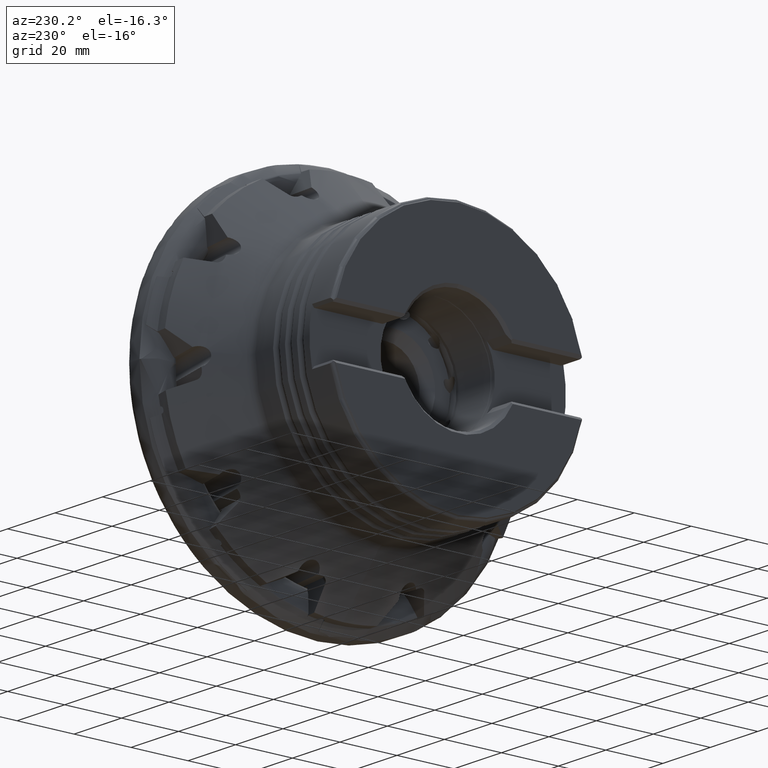
[diagram: clean part render]
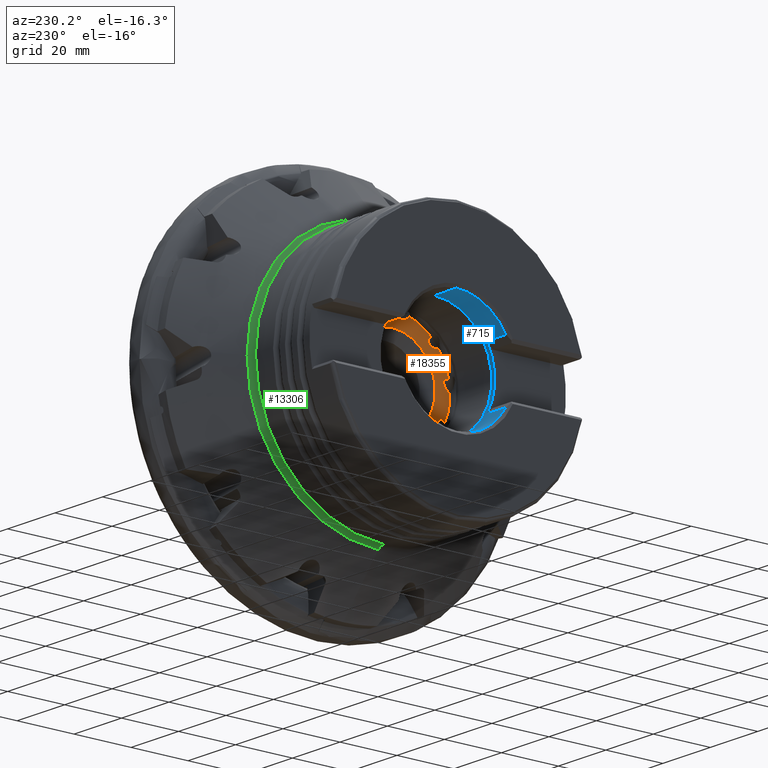
[diagram: same view with three faces highlighted in distinct colors, each labeled with its STEP entity id]
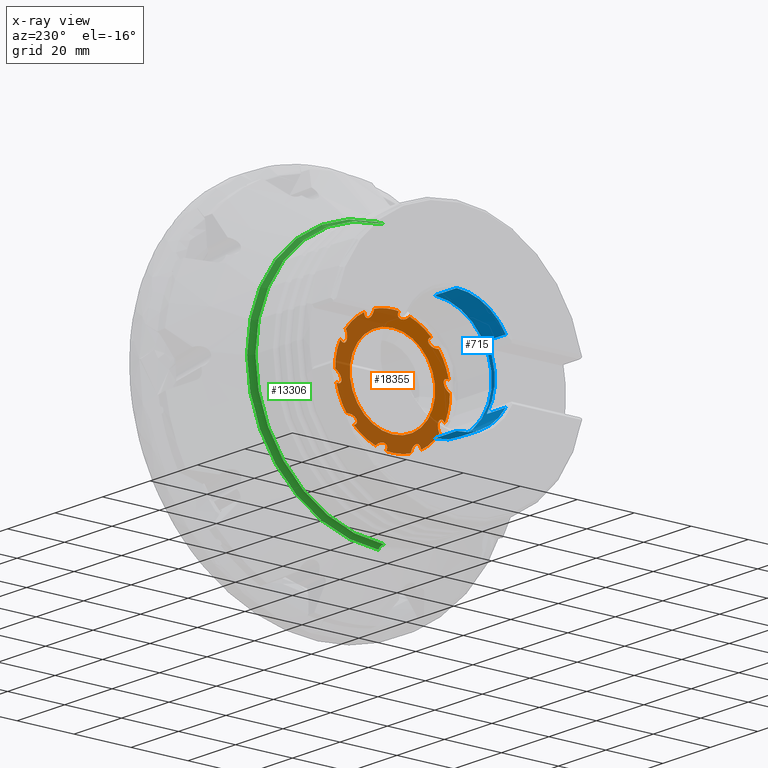
[diagram: x-ray of the same camera — body ghosted, the three highlighted faces saturated]
A machine part, auxiliary view with three faces highlighted in distinct colors.
The next image is the same camera in x-ray (body ghosted, the three faces saturated) — at least one of them is partly hidden behind the body in this view.
Their STEP definitions:

[orange] entity #18355 — the highlighted planar face has unit normal (1, 0, -0).
#73 = ORIENTED_EDGE ( 'NONE', *, *, #8362, .F. ) ;
#110 = EDGE_CURVE ( 'Kante32', #3250, #4673, #6549, .T. ) ;
#235 = EDGE_CURVE ( 'NONE', #410, #11578, #1085, .T. ) ;
#255 = CARTESIAN_POINT ( 'NONE',  ( -34.14999999999999900, -6.504135245028776600, -19.07141118833041600 ) ) ;
#297 = CARTESIAN_POINT ( 'NONE',  ( -34.14999999999999900, 9.944086903997803300, 17.52534266842560100 ) ) ;
#410 = VERTEX_POINT ( 'NONE', #8972 ) ;
#426 = CARTESIAN_POINT ( 'NONE',  ( -34.14999999999999900, 1.867385934581909700, -19.32251241532233300 ) ) ;
#433 = ORIENTED_EDGE ( 'NONE', *, *, #10256, .F. ) ;
#441 = DIRECTION ( 'NONE',  ( 0.0000000000000000000, 0.0000000000000000000, -1.000000000000000000 ) ) ;
#449 = DIRECTION ( 'NONE',  ( 0.0000000000000000000, 0.0000000000000000000, -1.000000000000000000 ) ) ;
#562 = DIRECTION ( 'NONE',  ( 1.000000000000000000, -0.0000000000000000000, -0.0000000000000000000 ) ) ;
#585 = AXIS2_PLACEMENT_3D ( 'NONE', #20534, #10453, #441 ) ;
#701 = AXIS2_PLACEMENT_3D ( 'NONE', #15147, #5091, #16805 ) ;
#924 = EDGE_CURVE ( 'NONE', #19756, #17583, #2049, .T. ) ;
#1048 = DIRECTION ( 'NONE',  ( 0.0000000000000000000, 0.0000000000000000000, -1.000000000000000000 ) ) ;
#1085 = CIRCLE ( 'NONE', #14832, 20.14999999999999100 ) ;
#1097 = CARTESIAN_POINT ( 'NONE',  ( -34.14999999999999900, -13.59469949823493500, 14.87301736544035100 ) ) ;
#1296 = DIRECTION ( 'NONE',  ( 1.000000000000000000, -0.0000000000000000000, -0.0000000000000000000 ) ) ;
#1325 = CARTESIAN_POINT ( 'NONE',  ( -34.14999999999999900, 16.47185018384749000, 11.60606098212838300 ) ) ;
#1341 = CARTESIAN_POINT ( 'NONE',  ( -34.14999999999999900, 8.870970266618567000, 16.06339064725607800 ) ) ;
#1365 = EDGE_CURVE ( 'NONE', #17451, #6698, #3357, .T. ) ;
#1537 =( BOUNDED_CURVE ( )  B_SPLINE_CURVE ( 3, ( #12694, #14373, #16056, #5988 ),
 .UNSPECIFIED., .F., .F. ) 
 B_SPLINE_CURVE_WITH_KNOTS ( ( 4, 4 ),
 ( 5.374664174862373600, 6.562663056319967900 ),
 .UNSPECIFIED. ) 
 CURVE ( )  GEOMETRIC_REPRESENTATION_ITEM ( )  RATIONAL_B_SPLINE_CURVE ( ( 1.000000000000000000, 0.8858059376262768000, 0.8858059376262768000, 1.000000000000000000 ) ) 
 REPRESENTATION_ITEM ( '' )  );
#1650 = CARTESIAN_POINT ( 'NONE',  ( -34.14999999999999900, -12.48615961030609400, 13.70587440985179800 ) ) ;
#1684 = DIRECTION ( 'NONE',  ( 1.000000000000000000, -0.0000000000000000000, -0.0000000000000000000 ) ) ;
#1721 = CARTESIAN_POINT ( 'NONE',  ( -34.14999999999999100, 12.48615961030598400, -14.22324231354175700 ) ) ;
#1746 = CIRCLE ( 'NONE', #5443, 20.14999999999999100 ) ;
#1898 = EDGE_CURVE ( 'Kante14', #16659, #2182, #10222, .T. ) ;
#1985 = CARTESIAN_POINT ( 'NONE',  ( -34.14999999999999900, -2.256202662996994700, 20.02328768068532800 ) ) ;
#2049 =( BOUNDED_CURVE ( )  B_SPLINE_CURVE ( 3, ( #18277, #14876, #20062, #6861 ),
 .UNSPECIFIED., .F., .F. ) 
 B_SPLINE_CURVE_WITH_KNOTS ( ( 4, 4 ),
 ( 5.374664174862385100, 6.802363348575911000 ),
 .UNSPECIFIED. ) 
 CURVE ( )  GEOMETRIC_REPRESENTATION_ITEM ( )  RATIONAL_B_SPLINE_CURVE ( ( 1.000000000000000000, 0.8372313148494138200, 0.8372313148494138200, 1.000000000000000000 ) ) 
 REPRESENTATION_ITEM ( '' )  );
#2095 =( BOUNDED_CURVE ( )  B_SPLINE_CURVE ( 3, ( #18810, #20517, #426, #12140 ),
 .UNSPECIFIED., .F., .F. ) 
 B_SPLINE_CURVE_WITH_KNOTS ( ( 4, 4 ),
 ( 5.374664174862382500, 5.965217407850454700 ),
 .UNSPECIFIED. ) 
 CURVE ( )  GEOMETRIC_REPRESENTATION_ITEM ( )  RATIONAL_B_SPLINE_CURVE ( ( 1.000000000000000000, 0.9711477881855719000, 0.9711477881855719000, 1.000000000000000000 ) ) 
 REPRESENTATION_ITEM ( '' )  );
#2166 = EDGE_CURVE ( 'NONE', #4385, #9432, #18442, .T. ) ;
#2182 = VERTEX_POINT ( 'NONE', #9315 ) ;
#2401 = VERTEX_POINT ( 'NONE', #18286 ) ;
#2510 =( BOUNDED_CURVE ( )  B_SPLINE_CURVE ( 3, ( #1341, #4672, #19957, #9892 ),
 .UNSPECIFIED., .F., .F. ) 
 B_SPLINE_CURVE_WITH_KNOTS ( ( 4, 4 ),
 ( 0.2794777491403875900, 2.143468943010434100 ),
 .UNSPECIFIED. ) 
 CURVE ( )  GEOMETRIC_REPRESENTATION_ITEM ( )  RATIONAL_B_SPLINE_CURVE ( ( 1.000000000000000000, 0.7308220550954924700, 0.7308220550954924700, 1.000000000000000000 ) ) 
 REPRESENTATION_ITEM ( '' )  );
#2527 = ORIENTED_EDGE ( 'NONE', *, *, #6295, .F. ) ;
#2594 = EDGE_CURVE ( 'NONE', #21094, #4184, #20748, .T. ) ;
#2888 = CARTESIAN_POINT ( 'NONE',  ( -34.14999999999999900, 12.48615961030599000, -13.70587440985189100 ) ) ;
#2949 = PLANE ( 'NONE',  #9566 ) ;
#3027 = CARTESIAN_POINT ( 'NONE',  ( -34.14999999999999900, -18.34607326074813500, -8.333312421316122700 ) ) ;
#3162 = CARTESIAN_POINT ( 'NONE',  ( -34.14999999999999900, -17.58930173423092600, -7.595092474737296800 ) ) ;
#3206 = AXIS2_PLACEMENT_3D ( 'NONE', #10584, #562, #12281 ) ;
#3250 = VERTEX_POINT ( 'NONE', #17850 ) ;
#3323 = CARTESIAN_POINT ( 'NONE',  ( -34.14999999999999900, -14.28436617743835400, 11.62413387057823400 ) ) ;
#3350 = EDGE_CURVE ( 'NONE', #4184, #14185, #15748, .T. ) ;
#3357 =( BOUNDED_CURVE ( )  B_SPLINE_CURVE ( 3, ( #16766, #13627, #16907, #15106 ),
 .UNSPECIFIED., .F., .F. ) 
 B_SPLINE_CURVE_WITH_KNOTS ( ( 4, 4 ),
 ( 6.170771650172901500, 8.426654250190019000 ),
 .UNSPECIFIED. ) 
 CURVE ( )  GEOMETRIC_REPRESENTATION_ITEM ( )  RATIONAL_B_SPLINE_CURVE ( ( 1.000000000000000000, 0.6190138772248428000, 0.6190138772248428000, 1.000000000000000000 ) ) 
 REPRESENTATION_ITEM ( '' )  );
#3386 = AXIS2_PLACEMENT_3D ( 'NONE', #14318, #4261, #15994 ) ;
#3392 = VERTEX_POINT ( 'NONE', #8680 ) ;
#3451 = VERTEX_POINT ( 'NONE', #17262 ) ;
#3463 = ORIENTED_EDGE ( 'NONE', *, *, #10290, .F. ) ;
#3467 = VERTEX_POINT ( 'NONE', #15617 ) ;
#3585 = AXIS2_PLACEMENT_3D ( 'NONE', #11701, #1684, #13537 ) ;
#3645 = EDGE_CURVE ( 'NONE', #9432, #6091, #18012, .T. ) ;
#4003 = ORIENTED_EDGE ( 'NONE', *, *, #19688, .F. ) ;
#4118 = CARTESIAN_POINT ( 'NONE',  ( -34.14999999999999900, -17.95906931545610200, 3.074200195595702100 ) ) ;
#4184 = VERTEX_POINT ( 'NONE', #18404 ) ;
#4261 = DIRECTION ( 'NONE',  ( 1.000000000000000000, -0.0000000000000000000, -0.0000000000000000000 ) ) ;
#4307 = CARTESIAN_POINT ( 'NONE',  ( -34.14999999999999900, -5.947938289965226700, 19.25213053401531800 ) ) ;
#4385 = VERTEX_POINT ( 'NONE', #1985 ) ;
#4434 = CARTESIAN_POINT ( 'NONE',  ( -34.14999999999999900, -12.48615961030609100, 14.22324231354166100 ) ) ;
#4490 =( BOUNDED_CURVE ( )  B_SPLINE_CURVE ( 3, ( #10064, #11738, #1721, #13424 ),
 .UNSPECIFIED., .F., .F. ) 
 B_SPLINE_CURVE_WITH_KNOTS ( ( 4, 4 ),
 ( 5.374664174862378000, 6.361620510830233500 ),
 .UNSPECIFIED. ) 
 CURVE ( )  GEOMETRIC_REPRESENTATION_ITEM ( )  RATIONAL_B_SPLINE_CURVE ( ( 1.000000000000000000, 0.9204604059607743900, 0.9204604059607743900, 1.000000000000000000 ) ) 
 REPRESENTATION_ITEM ( '' )  );
#4516 = DIRECTION ( 'NONE',  ( 1.000000000000000000, -0.0000000000000000000, -0.0000000000000000000 ) ) ;
#4569 = EDGE_CURVE ( 'NONE', #10288, #5806, #18620, .T. ) ;
#4587 = ORIENTED_EDGE ( 'NONE', *, *, #9721, .F. ) ;
#4672 = CARTESIAN_POINT ( 'NONE',  ( -34.14999999999999900, 7.701966102514708400, 16.06339064725608500 ) ) ;
#4673 = VERTEX_POINT ( 'NONE', #14540 ) ;
#4685 = CARTESIAN_POINT ( 'NONE',  ( -34.14999999999999900, -18.00080551143009100, -7.854696862593938200 ) ) ;
#4716 = DIRECTION ( 'NONE',  ( 1.000000000000000000, -0.0000000000000000000, -0.0000000000000000000 ) ) ;
#4744 = CARTESIAN_POINT ( 'NONE',  ( -34.14999999999999900, -1.867385934582049800, 18.99836928871339800 ) ) ;
#5004 =( BOUNDED_CURVE ( )  B_SPLINE_CURVE ( 3, ( #1650, #18339, #3323, #15046 ),
 .UNSPECIFIED., .F., .F. ) 
 B_SPLINE_CURVE_WITH_KNOTS ( ( 4, 4 ),
 ( 0.07843520365065137500, 2.143468943010429700 ),
 .UNSPECIFIED. ) 
 CURVE ( )  GEOMETRIC_REPRESENTATION_ITEM ( )  RATIONAL_B_SPLINE_CURVE ( ( 1.000000000000000000, 0.6751063378814389200, 0.6751063378814389200, 1.000000000000000000 ) ) 
 REPRESENTATION_ITEM ( '' )  );
#5074 = CARTESIAN_POINT ( 'NONE',  ( -34.14999999999999900, 8.870970266618567000, 16.06339064725607800 ) ) ;
#5091 = DIRECTION ( 'NONE',  ( 1.000000000000000000, -0.0000000000000000000, -0.0000000000000000000 ) ) ;
#5112 = CARTESIAN_POINT ( 'NONE',  ( -34.14999999999999900, 9.543351026309357700, 16.06339064725607800 ) ) ;
#5249 =( BOUNDED_CURVE ( )  B_SPLINE_CURVE ( 3, ( #17867, #6223, #7904, #19678 ),
 .UNSPECIFIED., .F., .F. ) 
 B_SPLINE_CURVE_WITH_KNOTS ( ( 4, 4 ),
 ( 5.965217407850454700, 8.426654250190026100 ),
 .UNSPECIFIED. ) 
 CURVE ( )  GEOMETRIC_REPRESENTATION_ITEM ( )  RATIONAL_B_SPLINE_CURVE ( ( 1.000000000000000000, 0.5557070246801799600, 0.5557070246801799600, 1.000000000000000000 ) ) 
 REPRESENTATION_ITEM ( '' )  );
#5405 = EDGE_CURVE ( 'NONE', #6698, #5435, #14873, .T. ) ;
#5435 = VERTEX_POINT ( 'NONE', #18821 ) ;
#5443 = AXIS2_PLACEMENT_3D ( 'NONE', #15831, #5751, #17481 ) ;
#5467 = AXIS2_PLACEMENT_3D ( 'NONE', #16996, #6951, #18717 ) ;
#5677 = CARTESIAN_POINT ( 'NONE',  ( -34.14999999999999900, 16.12810156117904700, -12.07919037155610400 ) ) ;
#5751 = DIRECTION ( 'NONE',  ( 1.000000000000000000, -0.0000000000000000000, -0.0000000000000000000 ) ) ;
#5779 = CARTESIAN_POINT ( 'NONE',  ( -34.14999999999999900, -17.95906931545610900, 1.978874017606783400 ) ) ;
#5802 = ORIENTED_EDGE ( 'NONE', *, *, #12323, .F. ) ;
#5806 = VERTEX_POINT ( 'NONE', #18351 ) ;
#5809 = ORIENTED_EDGE ( 'NONE', *, *, #2594, .F. ) ;
#5961 = CARTESIAN_POINT ( 'NONE',  ( -34.14999999999999900, -17.95906931545610200, 3.074200195595702100 ) ) ;
#5988 = CARTESIAN_POINT ( 'NONE',  ( -34.14999999999999900, -8.870970266618684300, -16.06339064725601800 ) ) ;
#6091 = VERTEX_POINT ( 'NONE', #7402 ) ;
#6223 = CARTESIAN_POINT ( 'NONE',  ( -34.14999999999999900, 1.867385934581915500, -17.16325438662086000 ) ) ;
#6244 = CARTESIAN_POINT ( 'NONE',  ( -34.14999999999999900, 15.70037446949612900, 7.595092474737160000 ) ) ;
#6271 = VERTEX_POINT ( 'NONE', #14612 ) ;
#6295 = EDGE_CURVE ( 'NONE', #12847, #7638, #18242, .T. ) ;
#6308 = ORIENTED_EDGE ( 'NONE', *, *, #14893, .T. ) ;
#6325 = ORIENTED_EDGE ( 'NONE', *, *, #17003, .F. ) ;
#6327 = ORIENTED_EDGE ( 'NONE', *, *, #7376, .F. ) ;
#6413 = ORIENTED_EDGE ( 'NONE', *, *, #924, .F. ) ;
#6549 = CIRCLE ( 'NONE', #3585, 20.14999999999999100 ) ;
#6589 = ORIENTED_EDGE ( 'NONE', *, *, #6885, .F. ) ;
#6598 = CARTESIAN_POINT ( 'NONE',  ( -34.14999999999999900, -17.95906931545610200, 3.074200195595702100 ) ) ;
#6617 = EDGE_CURVE ( 'NONE', #14185, #410, #2510, .T. ) ;
#6698 = VERTEX_POINT ( 'NONE', #11929 ) ;
#6785 = EDGE_CURVE ( 'Kante66', #21582, #2401, #14864, .T. ) ;
#6861 = CARTESIAN_POINT ( 'NONE',  ( -34.14999999999999900, 17.95906931545608700, -3.074200195595840700 ) ) ;
#6885 = EDGE_CURVE ( 'NONE', #7638, #10288, #21066, .T. ) ;
#6951 = DIRECTION ( 'NONE',  ( 1.000000000000000000, -0.0000000000000000000, -0.0000000000000000000 ) ) ;
#7227 = AXIS2_PLACEMENT_3D ( 'NONE', #20542, #10463, #449 ) ;
#7376 = EDGE_CURVE ( 'Kante66', #4673, #21582, #4490, .T. ) ;
#7394 = CARTESIAN_POINT ( 'NONE',  ( -34.14999999999999900, -6.504135245028776600, -19.07141118833041600 ) ) ;
#7402 = CARTESIAN_POINT ( 'NONE',  ( -34.14999999999999900, -5.947938289965226700, 19.25213053401531800 ) ) ;
#7470 = CARTESIAN_POINT ( 'NONE',  ( -34.14999999999999900, -20.14787821003289300, 0.2924100437427094600 ) ) ;
#7476 = EDGE_CURVE ( 'NONE', #9979, #14408, #18472, .T. ) ;
#7638 = VERTEX_POINT ( 'NONE', #14014 ) ;
#7904 = CARTESIAN_POINT ( 'NONE',  ( -34.14999999999999900, 4.315050005850153500, -17.31546963316376900 ) ) ;
#7982 = DIRECTION ( 'NONE',  ( -0.0000000000000000000, 0.0000000000000000000, -1.000000000000000000 ) ) ;
#8069 = CARTESIAN_POINT ( 'NONE',  ( -34.14999999999999900, 17.95906931545608700, -3.074200195595840700 ) ) ;
#8215 = CIRCLE ( 'NONE', #5467, 20.14999999999999100 ) ;
#8283 = CARTESIAN_POINT ( 'NONE',  ( -34.14999999999999900, 0.0000000000000000000, 0.0000000000000000000 ) ) ;
#8362 = EDGE_CURVE ( 'NONE', #11844, #10247, #20515, .T. ) ;
#8451 = FACE_OUTER_BOUND ( 'NONE', #15269, .T. ) ;
#8549 = CARTESIAN_POINT ( 'NONE',  ( -34.14999999999999900, -6.622435180184363700, -17.43537101744404400 ) ) ;
#8680 = CARTESIAN_POINT ( 'NONE',  ( -34.14999999999999900, 20.14787821003288600, -0.2924100437427561400 ) ) ;
#8775 = DIRECTION ( 'NONE',  ( 1.000000000000000000, -0.0000000000000000000, -0.0000000000000000000 ) ) ;
#8840 = CARTESIAN_POINT ( 'NONE',  ( -34.14999999999999900, -13.59469949823493500, 14.87301736544035100 ) ) ;
#8972 = CARTESIAN_POINT ( 'NONE',  ( -34.14999999999999900, 6.504135245028560800, 19.07141118833047600 ) ) ;
#9273 = CARTESIAN_POINT ( 'NONE',  ( -34.14999999999999900, 17.58930173423099300, 7.595092474737160000 ) ) ;
#9315 = CARTESIAN_POINT ( 'NONE',  ( -34.14999999999999900, 0.0000000000000000000, 15.00000000000000700 ) ) ;
#9432 = VERTEX_POINT ( 'NONE', #4744 ) ;
#9566 = AXIS2_PLACEMENT_3D ( 'NONE', #9617, #18023, #7982 ) ;
#9612 = CARTESIAN_POINT ( 'NONE',  ( -34.14999999999999900, -1.867385934582049800, 18.99836928871339800 ) ) ;
#9617 = CARTESIAN_POINT ( 'NONE',  ( -34.14999999999999900, 15.00000000000000700, 0.0000000000000000000 ) ) ;
#9633 = CARTESIAN_POINT ( 'NONE',  ( -34.14999999999999900, 16.47185018384749000, 11.60606098212838300 ) ) ;
#9655 = ORIENTED_EDGE ( 'NONE', *, *, #3645, .F. ) ;
#9662 = CARTESIAN_POINT ( 'NONE',  ( -34.14999999999999900, 18.34607326074819200, 8.333312421316019700 ) ) ;
#9721 = EDGE_CURVE ( 'NONE', #20025, #3451, #13764, .T. ) ;
#9892 = CARTESIAN_POINT ( 'NONE',  ( -34.14999999999999900, 6.504135245028560800, 19.07141118833047600 ) ) ;
#9979 = VERTEX_POINT ( 'NONE', #15727 ) ;
#9991 = DIRECTION ( 'NONE',  ( 0.0000000000000000000, 0.0000000000000000000, -1.000000000000000000 ) ) ;
#10064 = CARTESIAN_POINT ( 'NONE',  ( -34.14999999999999900, 13.59469949823494200, -14.87301736544035600 ) ) ;
#10078 = AXIS2_PLACEMENT_3D ( 'NONE', #14583, #4516, #16250 ) ;
#10221 = CARTESIAN_POINT ( 'NONE',  ( -34.14999999999999900, 17.95906931545608700, -3.074200195595840700 ) ) ;
#10222 = CIRCLE ( 'NONE', #15698, 15.00000000000000700 ) ;
#10247 = VERTEX_POINT ( 'NONE', #11599 ) ;
#10256 = EDGE_CURVE ( 'NONE', #3392, #11844, #17810, .T. ) ;
#10267 = CARTESIAN_POINT ( 'NONE',  ( -34.14999999999999900, -8.870970266618684300, -16.06339064725601800 ) ) ;
#10288 = VERTEX_POINT ( 'NONE', #6598 ) ;
#10290 = EDGE_CURVE ( 'NONE', #3451, #12847, #5004, .T. ) ;
#10453 = DIRECTION ( 'NONE',  ( 1.000000000000000000, -0.0000000000000000000, -0.0000000000000000000 ) ) ;
#10463 = DIRECTION ( 'NONE',  ( 1.000000000000000000, -0.0000000000000000000, -0.0000000000000000000 ) ) ;
#10502 = ORIENTED_EDGE ( 'NONE', *, *, #19804, .F. ) ;
#10584 = CARTESIAN_POINT ( 'NONE',  ( -34.14999999999999900, 0.0000000000000000000, 0.0000000000000000000 ) ) ;
#10760 = ORIENTED_EDGE ( 'NONE', *, *, #18570, .F. ) ;
#10970 = CARTESIAN_POINT ( 'NONE',  ( -34.14999999999999900, 18.34607326074819200, 8.333312421316019700 ) ) ;
#10971 = CARTESIAN_POINT ( 'NONE',  ( -34.14999999999999900, -18.66831730341216300, 4.394140629195878700 ) ) ;
#11057 = DIRECTION ( 'NONE',  ( 1.000000000000000000, -0.0000000000000000000, -0.0000000000000000000 ) ) ;
#11288 = CARTESIAN_POINT ( 'NONE',  ( -34.14999999999999900, 0.0000000000000000000, 0.0000000000000000000 ) ) ;
#11463 = CARTESIAN_POINT ( 'NONE',  ( -34.14999999999999900, 20.14787821003288600, -0.2924100437427561400 ) ) ;
#11578 = VERTEX_POINT ( 'NONE', #13704 ) ;
#11599 = CARTESIAN_POINT ( 'NONE',  ( -34.14999999999999900, 17.17590699765432700, 7.595092474737157300 ) ) ;
#11701 = CARTESIAN_POINT ( 'NONE',  ( -34.14999999999999900, 0.0000000000000000000, 0.0000000000000000000 ) ) ;
#11738 = CARTESIAN_POINT ( 'NONE',  ( -34.14999999999999100, 12.88760359810099700, -14.64590867631348600 ) ) ;
#11844 = VERTEX_POINT ( 'NONE', #9662 ) ;
#11891 = CARTESIAN_POINT ( 'NONE',  ( -34.14999999999999900, -7.701966102514814100, -16.06339064725602100 ) ) ;
#11929 = CARTESIAN_POINT ( 'NONE',  ( -34.14999999999999900, -16.47185018384737300, -11.60606098212854900 ) ) ;
#11951 = CARTESIAN_POINT ( 'NONE',  ( -34.14999999999999900, -16.12810156117920000, 12.07919037155589100 ) ) ;
#12014 = CARTESIAN_POINT ( 'NONE',  ( -34.14999999999999900, 8.870970266618567000, 16.06339064725607800 ) ) ;
#12140 = CARTESIAN_POINT ( 'NONE',  ( -34.14999999999999900, 1.867385934581917900, -18.99836928871343700 ) ) ;
#12281 = DIRECTION ( 'NONE',  ( 0.0000000000000000000, 0.0000000000000000000, -1.000000000000000000 ) ) ;
#12323 = EDGE_CURVE ( 'NONE', #17583, #3392, #17484, .T. ) ;
#12373 = CARTESIAN_POINT ( 'NONE',  ( -34.14999999999999900, 12.48615961030598400, -12.42730810008836400 ) ) ;
#12436 = CIRCLE ( 'NONE', #16296, 20.14999999999999100 ) ;
#12623 = ORIENTED_EDGE ( 'NONE', *, *, #235, .F. ) ;
#12662 = CARTESIAN_POINT ( 'NONE',  ( -34.14999999999999900, 17.17590699765432700, 7.595092474737157300 ) ) ;
#12675 = CARTESIAN_POINT ( 'NONE',  ( -34.14999999999999900, -1.867385934582052300, 17.16325438662083500 ) ) ;
#12694 = CARTESIAN_POINT ( 'NONE',  ( -34.14999999999999900, -9.944086903997838800, -17.52534266842559800 ) ) ;
#12714 = ORIENTED_EDGE ( 'NONE', *, *, #18020, .F. ) ;
#12847 = VERTEX_POINT ( 'NONE', #11951 ) ;
#12867 = ORIENTED_EDGE ( 'NONE', *, *, #3350, .F. ) ;
#12994 = DIRECTION ( 'NONE',  ( 0.0000000000000000000, 0.0000000000000000000, -1.000000000000000000 ) ) ;
#13157 = ORIENTED_EDGE ( 'NONE', *, *, #2166, .F. ) ;
#13292 = CIRCLE ( 'NONE', #7227, 20.14999999999999100 ) ;
#13387 = ORIENTED_EDGE ( 'NONE', *, *, #6617, .F. ) ;
#13404 = EDGE_CURVE ( 'NONE', #6091, #20025, #13292, .T. ) ;
#13424 = CARTESIAN_POINT ( 'NONE',  ( -34.14999999999999900, 12.48615961030599000, -13.70587440985189100 ) ) ;
#13465 = VERTEX_POINT ( 'NONE', #19423 ) ;
#13466 = FACE_BOUND ( 'NONE', #18360, .T. ) ;
#13537 = DIRECTION ( 'NONE',  ( 0.0000000000000000000, 0.0000000000000000000, -1.000000000000000000 ) ) ;
#13615 = ORIENTED_EDGE ( 'NONE', *, *, #15574, .F. ) ;
#13627 = CARTESIAN_POINT ( 'NONE',  ( -34.14999999999999900, -15.70037446949606900, -7.595092474737302100 ) ) ;
#13704 = CARTESIAN_POINT ( 'NONE',  ( -34.14999999999999900, 2.467663300281915800E-015, 20.14999999999999100 ) ) ;
#13764 =( BOUNDED_CURVE ( )  B_SPLINE_CURVE ( 3, ( #1097, #16109, #4434, #16178 ),
 .UNSPECIFIED., .F., .F. ) 
 B_SPLINE_CURVE_WITH_KNOTS ( ( 4, 4 ),
 ( 5.374664174862390500, 6.361620510830237900 ),
 .UNSPECIFIED. ) 
 CURVE ( )  GEOMETRIC_REPRESENTATION_ITEM ( )  RATIONAL_B_SPLINE_CURVE ( ( 1.000000000000000000, 0.9204604059607757200, 0.9204604059607757200, 1.000000000000000000 ) ) 
 REPRESENTATION_ITEM ( '' )  );
#14014 = CARTESIAN_POINT ( 'NONE',  ( -34.14999999999999900, -19.74048319198837100, 4.041759931864374900 ) ) ;
#14185 = VERTEX_POINT ( 'NONE', #5074 ) ;
#14318 = CARTESIAN_POINT ( 'NONE',  ( -34.14999999999999900, 0.0000000000000000000, 0.0000000000000000000 ) ) ;
#14359 = CARTESIAN_POINT ( 'NONE',  ( -34.14999999999999900, -4.315050005850283200, 17.31546963316372300 ) ) ;
#14373 = CARTESIAN_POINT ( 'NONE',  ( -34.14999999999999900, -9.947170339997573100, -16.61353071709538300 ) ) ;
#14408 = VERTEX_POINT ( 'NONE', #7394 ) ;
#14433 =( BOUNDED_CURVE ( )  B_SPLINE_CURVE ( 3, ( #17967, #6244, #19698, #9633 ),
 .UNSPECIFIED., .F., .F. ) 
 B_SPLINE_CURVE_WITH_KNOTS ( ( 4, 4 ),
 ( 6.170771650172895300, 8.426654250190019000 ),
 .UNSPECIFIED. ) 
 CURVE ( )  GEOMETRIC_REPRESENTATION_ITEM ( )  RATIONAL_B_SPLINE_CURVE ( ( 1.000000000000000000, 0.6190138772248409100, 0.6190138772248409100, 1.000000000000000000 ) ) 
 REPRESENTATION_ITEM ( '' )  );
#14455 = ORIENTED_EDGE ( 'NONE', *, *, #19763, .F. ) ;
#14540 = CARTESIAN_POINT ( 'NONE',  ( -34.14999999999999900, 13.59469949823494200, -14.87301736544035600 ) ) ;
#14583 = CARTESIAN_POINT ( 'NONE',  ( -34.14999999999999900, 0.0000000000000000000, 0.0000000000000000000 ) ) ;
#14612 = CARTESIAN_POINT ( 'NONE',  ( -34.14999999999999900, 1.867385934581917900, -18.99836928871343700 ) ) ;
#14783 = DIRECTION ( 'NONE',  ( 0.0000000000000000000, 0.0000000000000000000, -1.000000000000000000 ) ) ;
#14832 = AXIS2_PLACEMENT_3D ( 'NONE', #21142, #11057, #1048 ) ;
#14864 =( BOUNDED_CURVE ( )  B_SPLINE_CURVE ( 3, ( #20760, #12373, #15737, #5677 ),
 .UNSPECIFIED., .F., .F. ) 
 B_SPLINE_CURVE_WITH_KNOTS ( ( 4, 4 ),
 ( 0.07843520365064715600, 2.143468943010439900 ),
 .UNSPECIFIED. ) 
 CURVE ( )  GEOMETRIC_REPRESENTATION_ITEM ( )  RATIONAL_B_SPLINE_CURVE ( ( 1.000000000000000000, 0.6751063378814349300, 0.6751063378814349300, 1.000000000000000000 ) ) 
 REPRESENTATION_ITEM ( '' )  );
#14873 = CIRCLE ( 'NONE', #585, 20.14999999999999100 ) ;
#14876 = CARTESIAN_POINT ( 'NONE',  ( -34.14999999999999900, 18.66831730341213500, -4.394140629196009200 ) ) ;
#14893 = EDGE_CURVE ( 'Kante14', #2182, #16659, #20683, .T. ) ;
#14896 = CARTESIAN_POINT ( 'NONE',  ( -34.14999999999999900, -17.17590699765425600, -7.595092474737295900 ) ) ;
#14998 = ORIENTED_EDGE ( 'NONE', *, *, #15232, .F. ) ;
#15046 = CARTESIAN_POINT ( 'NONE',  ( -34.14999999999999900, -16.12810156117920000, 12.07919037155589100 ) ) ;
#15079 = EDGE_CURVE ( 'NONE', #11578, #4385, #19078, .T. ) ;
#15094 = ORIENTED_EDGE ( 'NONE', *, *, #5405, .F. ) ;
#15106 = CARTESIAN_POINT ( 'NONE',  ( -34.14999999999999900, -16.47185018384737300, -11.60606098212854900 ) ) ;
#15147 = CARTESIAN_POINT ( 'NONE',  ( -34.14999999999999900, 0.0000000000000000000, 0.0000000000000000000 ) ) ;
#15232 = EDGE_CURVE ( 'NONE', #3467, #6271, #2095, .T. ) ;
#15240 = CARTESIAN_POINT ( 'NONE',  ( -34.14999999999999100, -1.867385934582050900, 19.32251241532230100 ) ) ;
#15269 = EDGE_LOOP ( 'NONE', ( #10502, #4003, #18599, #6589, #2527, #3463, #4587, #19826, #9655, #13157, #18820, #12623, #13387, #12867, #5809, #13615, #73, #433, #5802, #6413, #12714, #20432, #6327, #16705, #14455, #14998, #10760, #16577, #18024, #6325, #15094, #16569 ) ) ;
#15361 =( BOUNDED_CURVE ( )  B_SPLINE_CURVE ( 3, ( #3027, #4685, #3162, #14896 ),
 .UNSPECIFIED., .F., .F. ) 
 B_SPLINE_CURVE_WITH_KNOTS ( ( 4, 4 ),
 ( 5.374664174862386900, 6.170771650172901500 ),
 .UNSPECIFIED. ) 
 CURVE ( )  GEOMETRIC_REPRESENTATION_ITEM ( )  RATIONAL_B_SPLINE_CURVE ( ( 1.000000000000000000, 0.9478781062135834800, 0.9478781062135834800, 1.000000000000000000 ) ) 
 REPRESENTATION_ITEM ( '' )  );
#15574 = EDGE_CURVE ( 'NONE', #10247, #21094, #14433, .T. ) ;
#15617 = CARTESIAN_POINT ( 'NONE',  ( -34.14999999999999900, 2.256202662996923600, -20.02328768068534300 ) ) ;
#15698 = AXIS2_PLACEMENT_3D ( 'NONE', #16454, #4716, #14783 ) ;
#15727 = CARTESIAN_POINT ( 'NONE',  ( -34.14999999999999900, -8.870970266618684300, -16.06339064725601800 ) ) ;
#15737 = CARTESIAN_POINT ( 'NONE',  ( -34.14999999999999900, 14.28436617743827400, -11.62413387057832100 ) ) ;
#15748 =( BOUNDED_CURVE ( )  B_SPLINE_CURVE ( 3, ( #297, #20408, #5112, #12014 ),
 .UNSPECIFIED., .F., .F. ) 
 B_SPLINE_CURVE_WITH_KNOTS ( ( 4, 4 ),
 ( 5.374664174862384200, 6.562663056319974200 ),
 .UNSPECIFIED. ) 
 CURVE ( )  GEOMETRIC_REPRESENTATION_ITEM ( )  RATIONAL_B_SPLINE_CURVE ( ( 1.000000000000000000, 0.8858059376262775700, 0.8858059376262775700, 1.000000000000000000 ) ) 
 REPRESENTATION_ITEM ( '' )  );
#15831 = CARTESIAN_POINT ( 'NONE',  ( -34.14999999999999900, 0.0000000000000000000, 0.0000000000000000000 ) ) ;
#15896 = EDGE_CURVE ( 'NONE', #14408, #13465, #1746, .T. ) ;
#15994 = DIRECTION ( 'NONE',  ( 0.0000000000000000000, 0.0000000000000000000, -1.000000000000000000 ) ) ;
#16023 = CARTESIAN_POINT ( 'NONE',  ( -34.14999999999999900, -17.95906931545610500, 4.008918640518129600 ) ) ;
#16056 = CARTESIAN_POINT ( 'NONE',  ( -34.14999999999999900, -9.543351026309473200, -16.06339064725602100 ) ) ;
#16109 = CARTESIAN_POINT ( 'NONE',  ( -34.14999999999999900, -12.88760359810110000, 14.64590867631338800 ) ) ;
#16178 = CARTESIAN_POINT ( 'NONE',  ( -34.14999999999999900, -12.48615961030609400, 13.70587440985179800 ) ) ;
#16250 = DIRECTION ( 'NONE',  ( 0.0000000000000000000, 0.0000000000000000000, -1.000000000000000000 ) ) ;
#16276 = CARTESIAN_POINT ( 'NONE',  ( -34.14999999999999900, 19.74048319198831400, -4.041759931864633300 ) ) ;
#16296 = AXIS2_PLACEMENT_3D ( 'NONE', #18839, #8775, #20557 ) ;
#16454 = CARTESIAN_POINT ( 'NONE',  ( -34.14999999999999900, 0.0000000000000000000, 0.0000000000000000000 ) ) ;
#16569 = ORIENTED_EDGE ( 'NONE', *, *, #1365, .F. ) ;
#16577 = ORIENTED_EDGE ( 'NONE', *, *, #15896, .F. ) ;
#16659 = VERTEX_POINT ( 'NONE', #19992 ) ;
#16705 = ORIENTED_EDGE ( 'NONE', *, *, #110, .F. ) ;
#16766 = CARTESIAN_POINT ( 'NONE',  ( -34.14999999999999900, -17.17590699765425600, -7.595092474737295900 ) ) ;
#16805 = DIRECTION ( 'NONE',  ( 0.0000000000000000000, 0.0000000000000000000, -1.000000000000000000 ) ) ;
#16846 = VERTEX_POINT ( 'NONE', #17142 ) ;
#16907 = CARTESIAN_POINT ( 'NONE',  ( -34.14999999999999900, -15.32124628960061100, -9.754962473868356900 ) ) ;
#16996 = CARTESIAN_POINT ( 'NONE',  ( -34.14999999999999900, 0.0000000000000000000, 0.0000000000000000000 ) ) ;
#17003 = EDGE_CURVE ( 'NONE', #5435, #9979, #1537, .T. ) ;
#17142 = CARTESIAN_POINT ( 'NONE',  ( -34.14999999999999900, -18.34607326074813500, -8.333312421316122700 ) ) ;
#17262 = CARTESIAN_POINT ( 'NONE',  ( -34.14999999999999900, -12.48615961030609400, 13.70587440985179800 ) ) ;
#17451 = VERTEX_POINT ( 'NONE', #21124 ) ;
#17481 = DIRECTION ( 'NONE',  ( 0.0000000000000000000, 0.0000000000000000000, -1.000000000000000000 ) ) ;
#17484 =( BOUNDED_CURVE ( )  B_SPLINE_CURVE ( 3, ( #8069, #18114, #21541, #11463 ),
 .UNSPECIFIED., .F., .F. ) 
 B_SPLINE_CURVE_WITH_KNOTS ( ( 4, 4 ),
 ( 0.5191780413963247300, 2.143468943010434600 ),
 .UNSPECIFIED. ) 
 CURVE ( )  GEOMETRIC_REPRESENTATION_ITEM ( )  RATIONAL_B_SPLINE_CURVE ( ( 1.000000000000000000, 0.7919619498500696200, 0.7919619498500696200, 1.000000000000000000 ) ) 
 REPRESENTATION_ITEM ( '' )  );
#17516 = CARTESIAN_POINT ( 'NONE',  ( -34.14999999999999900, -18.88032944038642200, 0.8080306656925182500 ) ) ;
#17583 = VERTEX_POINT ( 'NONE', #10221 ) ;
#17792 = CARTESIAN_POINT ( 'NONE',  ( -34.14999999999999100, -2.000842013785476300, 19.67430178059381900 ) ) ;
#17810 = CIRCLE ( 'NONE', #18579, 20.14999999999999100 ) ;
#17850 = CARTESIAN_POINT ( 'NONE',  ( -34.14999999999999900, 5.947938289965006400, -19.25213053401540000 ) ) ;
#17867 = CARTESIAN_POINT ( 'NONE',  ( -34.14999999999999900, 1.867385934581917900, -18.99836928871343700 ) ) ;
#17930 = CIRCLE ( 'NONE', #3386, 20.14999999999999100 ) ;
#17967 = CARTESIAN_POINT ( 'NONE',  ( -34.14999999999999900, 17.17590699765432700, 7.595092474737157300 ) ) ;
#18012 =( BOUNDED_CURVE ( )  B_SPLINE_CURVE ( 3, ( #19345, #12675, #14359, #4307 ),
 .UNSPECIFIED., .F., .F. ) 
 B_SPLINE_CURVE_WITH_KNOTS ( ( 4, 4 ),
 ( 5.965217407850458300, 8.426654250190024300 ),
 .UNSPECIFIED. ) 
 CURVE ( )  GEOMETRIC_REPRESENTATION_ITEM ( )  RATIONAL_B_SPLINE_CURVE ( ( 1.000000000000000000, 0.5557070246801816300, 0.5557070246801816300, 1.000000000000000000 ) ) 
 REPRESENTATION_ITEM ( '' )  );
#18020 = EDGE_CURVE ( 'NONE', #2401, #19756, #8215, .T. ) ;
#18023 = DIRECTION ( 'NONE',  ( 1.000000000000000000, 0.0000000000000000000, -0.0000000000000000000 ) ) ;
#18024 = ORIENTED_EDGE ( 'NONE', *, *, #7476, .F. ) ;
#18114 = CARTESIAN_POINT ( 'NONE',  ( -34.14999999999999900, 17.95906931545608700, -1.978874017606926600 ) ) ;
#18242 = CIRCLE ( 'NONE', #21119, 20.14999999999999100 ) ;
#18277 = CARTESIAN_POINT ( 'NONE',  ( -34.14999999999999900, 19.74048319198831400, -4.041759931864633300 ) ) ;
#18286 = CARTESIAN_POINT ( 'NONE',  ( -34.14999999999999900, 16.12810156117904700, -12.07919037155610400 ) ) ;
#18339 = CARTESIAN_POINT ( 'NONE',  ( -34.14999999999999900, -12.48615961030609100, 12.42730810008828400 ) ) ;
#18351 = CARTESIAN_POINT ( 'NONE',  ( -34.14999999999999900, -20.14787821003289300, 0.2924100437427094600 ) ) ;
#18355 = ADVANCED_FACE ( 'NONE', ( #13466, #8451 ), #2949, .F. ) ;
#18360 = EDGE_LOOP ( 'NONE', ( #6308, #21571 ) ) ;
#18404 = CARTESIAN_POINT ( 'NONE',  ( -34.14999999999999900, 9.944086903997803300, 17.52534266842560100 ) ) ;
#18442 =( BOUNDED_CURVE ( )  B_SPLINE_CURVE ( 3, ( #19523, #17792, #15240, #9612 ),
 .UNSPECIFIED., .F., .F. ) 
 B_SPLINE_CURVE_WITH_KNOTS ( ( 4, 4 ),
 ( 5.374664174862379800, 5.965217407850458300 ),
 .UNSPECIFIED. ) 
 CURVE ( )  GEOMETRIC_REPRESENTATION_ITEM ( )  RATIONAL_B_SPLINE_CURVE ( ( 1.000000000000000000, 0.9711477881855713500, 0.9711477881855713500, 1.000000000000000000 ) ) 
 REPRESENTATION_ITEM ( '' )  );
#18472 =( BOUNDED_CURVE ( )  B_SPLINE_CURVE ( 3, ( #10267, #11891, #8549, #255 ),
 .UNSPECIFIED., .F., .F. ) 
 B_SPLINE_CURVE_WITH_KNOTS ( ( 4, 4 ),
 ( 0.2794777491403815900, 2.143468943010444300 ),
 .UNSPECIFIED. ) 
 CURVE ( )  GEOMETRIC_REPRESENTATION_ITEM ( )  RATIONAL_B_SPLINE_CURVE ( ( 1.000000000000000000, 0.7308220550954882500, 0.7308220550954882500, 1.000000000000000000 ) ) 
 REPRESENTATION_ITEM ( '' )  );
#18570 = EDGE_CURVE ( 'NONE', #13465, #3467, #12436, .T. ) ;
#18579 = AXIS2_PLACEMENT_3D ( 'NONE', #8283, #20072, #9991 ) ;
#18599 = ORIENTED_EDGE ( 'NONE', *, *, #4569, .F. ) ;
#18620 =( BOUNDED_CURVE ( )  B_SPLINE_CURVE ( 3, ( #4118, #5779, #17516, #7470 ),
 .UNSPECIFIED., .F., .F. ) 
 B_SPLINE_CURVE_WITH_KNOTS ( ( 4, 4 ),
 ( 0.5191780413963327200, 2.143468943010439000 ),
 .UNSPECIFIED. ) 
 CURVE ( )  GEOMETRIC_REPRESENTATION_ITEM ( )  RATIONAL_B_SPLINE_CURVE ( ( 1.000000000000000000, 0.7919619498500705100, 0.7919619498500705100, 1.000000000000000000 ) ) 
 REPRESENTATION_ITEM ( '' )  );
#18717 = DIRECTION ( 'NONE',  ( 0.0000000000000000000, 0.0000000000000000000, -1.000000000000000000 ) ) ;
#18810 = CARTESIAN_POINT ( 'NONE',  ( -34.14999999999999900, 2.256202662996923600, -20.02328768068534300 ) ) ;
#18820 = ORIENTED_EDGE ( 'NONE', *, *, #15079, .F. ) ;
#18821 = CARTESIAN_POINT ( 'NONE',  ( -34.14999999999999900, -9.944086903997838800, -17.52534266842559800 ) ) ;
#18839 = CARTESIAN_POINT ( 'NONE',  ( -34.14999999999999900, 0.0000000000000000000, 0.0000000000000000000 ) ) ;
#19078 = CIRCLE ( 'NONE', #701, 20.14999999999999100 ) ;
#19345 = CARTESIAN_POINT ( 'NONE',  ( -34.14999999999999900, -1.867385934582049800, 18.99836928871339800 ) ) ;
#19423 = CARTESIAN_POINT ( 'NONE',  ( -34.14999999999999900, 0.0000000000000000000, -20.14999999999999100 ) ) ;
#19523 = CARTESIAN_POINT ( 'NONE',  ( -34.14999999999999900, -2.256202662996994700, 20.02328768068532800 ) ) ;
#19678 = CARTESIAN_POINT ( 'NONE',  ( -34.14999999999999900, 5.947938289965006400, -19.25213053401540000 ) ) ;
#19688 = EDGE_CURVE ( 'NONE', #5806, #16846, #17930, .T. ) ;
#19698 = CARTESIAN_POINT ( 'NONE',  ( -34.14999999999999900, 15.32124628960068700, 9.754962473868227200 ) ) ;
#19756 = VERTEX_POINT ( 'NONE', #16276 ) ;
#19763 = EDGE_CURVE ( 'NONE', #6271, #3250, #5249, .T. ) ;
#19804 = EDGE_CURVE ( 'NONE', #16846, #17451, #15361, .T. ) ;
#19826 = ORIENTED_EDGE ( 'NONE', *, *, #13404, .F. ) ;
#19957 = CARTESIAN_POINT ( 'NONE',  ( -34.14999999999999900, 6.622435180184258000, 17.43537101744408000 ) ) ;
#19992 = CARTESIAN_POINT ( 'NONE',  ( -34.14999999999999900, 1.836970198721030800E-015, -15.00000000000000700 ) ) ;
#20025 = VERTEX_POINT ( 'NONE', #8840 ) ;
#20062 = CARTESIAN_POINT ( 'NONE',  ( -34.14999999999999900, 17.95906931545608700, -4.008918640518257500 ) ) ;
#20072 = DIRECTION ( 'NONE',  ( 1.000000000000000000, -0.0000000000000000000, -0.0000000000000000000 ) ) ;
#20408 = CARTESIAN_POINT ( 'NONE',  ( -34.14999999999999900, 9.947170339997452300, 16.61353071709543600 ) ) ;
#20432 = ORIENTED_EDGE ( 'NONE', *, *, #6785, .F. ) ;
#20515 =( BOUNDED_CURVE ( )  B_SPLINE_CURVE ( 3, ( #10970, #20976, #9273, #12662 ),
 .UNSPECIFIED., .F., .F. ) 
 B_SPLINE_CURVE_WITH_KNOTS ( ( 4, 4 ),
 ( 5.374664174862382500, 6.170771650172895300 ),
 .UNSPECIFIED. ) 
 CURVE ( )  GEOMETRIC_REPRESENTATION_ITEM ( )  RATIONAL_B_SPLINE_CURVE ( ( 1.000000000000000000, 0.9478781062135835900, 0.9478781062135835900, 1.000000000000000000 ) ) 
 REPRESENTATION_ITEM ( '' )  );
#20517 = CARTESIAN_POINT ( 'NONE',  ( -34.14999999999999900, 2.000842013785331600, -19.67430178059384700 ) ) ;
#20534 = CARTESIAN_POINT ( 'NONE',  ( -34.14999999999999900, 0.0000000000000000000, 0.0000000000000000000 ) ) ;
#20542 = CARTESIAN_POINT ( 'NONE',  ( -34.14999999999999900, 0.0000000000000000000, 0.0000000000000000000 ) ) ;
#20557 = DIRECTION ( 'NONE',  ( 0.0000000000000000000, 0.0000000000000000000, -1.000000000000000000 ) ) ;
#20683 = CIRCLE ( 'NONE', #10078, 15.00000000000000700 ) ;
#20748 = CIRCLE ( 'NONE', #3206, 20.14999999999999100 ) ;
#20760 = CARTESIAN_POINT ( 'NONE',  ( -34.14999999999999900, 12.48615961030599000, -13.70587440985189100 ) ) ;
#20976 = CARTESIAN_POINT ( 'NONE',  ( -34.14999999999999900, 18.00080551143016500, 7.854696862593801400 ) ) ;
#21040 = CARTESIAN_POINT ( 'NONE',  ( -34.14999999999999900, -19.74048319198837100, 4.041759931864374900 ) ) ;
#21066 =( BOUNDED_CURVE ( )  B_SPLINE_CURVE ( 3, ( #21040, #10971, #16023, #5961 ),
 .UNSPECIFIED., .F., .F. ) 
 B_SPLINE_CURVE_WITH_KNOTS ( ( 4, 4 ),
 ( 5.374664174862380700, 6.802363348575919000 ),
 .UNSPECIFIED. ) 
 CURVE ( )  GEOMETRIC_REPRESENTATION_ITEM ( )  RATIONAL_B_SPLINE_CURVE ( ( 1.000000000000000000, 0.8372313148494111600, 0.8372313148494111600, 1.000000000000000000 ) ) 
 REPRESENTATION_ITEM ( '' )  );
#21094 = VERTEX_POINT ( 'NONE', #1325 ) ;
#21119 = AXIS2_PLACEMENT_3D ( 'NONE', #11288, #1296, #12994 ) ;
#21124 = CARTESIAN_POINT ( 'NONE',  ( -34.14999999999999900, -17.17590699765425600, -7.595092474737295900 ) ) ;
#21142 = CARTESIAN_POINT ( 'NONE',  ( -34.14999999999999900, 0.0000000000000000000, 0.0000000000000000000 ) ) ;
#21541 = CARTESIAN_POINT ( 'NONE',  ( -34.14999999999999900, 18.88032944038639700, -0.8080306656926622400 ) ) ;
#21571 = ORIENTED_EDGE ( 'NONE', *, *, #1898, .T. ) ;
#21582 = VERTEX_POINT ( 'NONE', #2888 ) ;

[blue] entity #715 — the highlighted cylindrical surface (partial cylindrical patch) has radius 20.075 mm, axis along (1, -0, -0).
#78 = EDGE_CURVE ( 'NONE', #18773, #1498, #16531, .T. ) ;
#125 = CIRCLE ( 'NONE', #5056, 20.07499999999999200 ) ;
#267 = VERTEX_POINT ( 'NONE', #21363 ) ;
#520 = DIRECTION ( 'NONE',  ( 1.000000000000000000, -0.0000000000000000000, -0.0000000000000000000 ) ) ;
#595 = CARTESIAN_POINT ( 'NONE',  ( -8.673617379884035500E-016, 0.0000000000000000000, -20.07499999999999200 ) ) ;
#707 = DIRECTION ( 'NONE',  ( 0.0000000000000000000, 0.0000000000000000000, -1.000000000000000000 ) ) ;
#715 = ADVANCED_FACE ( 'NONE', ( #14468 ), #9468, .F. ) ;
#724 = CARTESIAN_POINT ( 'NONE',  ( -51.89999999999999100, 2.458478449288310500E-015, 20.07499999999999200 ) ) ;
#776 = CIRCLE ( 'NONE', #12303, 20.07499999999999200 ) ;
#1450 = VERTEX_POINT ( 'NONE', #6378 ) ;
#1498 = VERTEX_POINT ( 'NONE', #20551 ) ;
#2367 = LINE ( 'NONE', #9149, #14688 ) ;
#2446 = ORIENTED_EDGE ( 'NONE', *, *, #13885, .T. ) ;
#2874 = CARTESIAN_POINT ( 'NONE',  ( -61.14999999999999900, 0.0000000000000000000, 0.0000000000000000000 ) ) ;
#3046 = CARTESIAN_POINT ( 'NONE',  ( -61.14999999999999900, 0.0000000000000000000, 0.0000000000000000000 ) ) ;
#3140 = CARTESIAN_POINT ( 'NONE',  ( -61.14999999999999900, 0.0000000000000000000, 20.07499999999999200 ) ) ;
#4544 = DIRECTION ( 'NONE',  ( 0.0000000000000000000, 0.0000000000000000000, -1.000000000000000000 ) ) ;
#4696 = AXIS2_PLACEMENT_3D ( 'NONE', #8247, #11554, #13319 ) ;
#4706 = DIRECTION ( 'NONE',  ( 0.0000000000000000000, 0.0000000000000000000, -1.000000000000000000 ) ) ;
#5056 = AXIS2_PLACEMENT_3D ( 'NONE', #2874, #14605, #4544 ) ;
#5643 = DIRECTION ( 'NONE',  ( 1.000000000000000000, -0.0000000000000000000, -0.0000000000000000000 ) ) ;
#5692 = AXIS2_PLACEMENT_3D ( 'NONE', #9181, #20969, #10889 ) ;
#5924 = ORIENTED_EDGE ( 'NONE', *, *, #18287, .T. ) ;
#5992 = LINE ( 'NONE', #595, #14417 ) ;
#6378 = CARTESIAN_POINT ( 'NONE',  ( -61.14999999999999900, -17.24210181586828100, -10.28180674644449000 ) ) ;
#6666 = EDGE_LOOP ( 'NONE', ( #19200, #12729, #2446, #9941, #9729, #5924, #15787, #18001 ) ) ;
#7501 = CARTESIAN_POINT ( 'NONE',  ( -61.14999999999999900, 0.0000000000000000000, -20.07499999999999200 ) ) ;
#8247 = CARTESIAN_POINT ( 'NONE',  ( -53.14999999999999900, 0.0000000000000000000, 0.0000000000000000000 ) ) ;
#8336 = AXIS2_PLACEMENT_3D ( 'NONE', #14018, #5643, #707 ) ;
#8351 = VERTEX_POINT ( 'NONE', #7501 ) ;
#8766 = VERTEX_POINT ( 'NONE', #724 ) ;
#8993 = VECTOR ( 'NONE', #14534, 1000.000000000000000 ) ;
#9149 = CARTESIAN_POINT ( 'NONE',  ( -8.673617379884035500E-016, 2.458478449288310500E-015, 20.07499999999999200 ) ) ;
#9181 = CARTESIAN_POINT ( 'NONE',  ( -51.89999999999999100, 0.0000000000000000000, 0.0000000000000000000 ) ) ;
#9330 = EDGE_CURVE ( 'NONE', #1498, #267, #21573, .T. ) ;
#9468 = CYLINDRICAL_SURFACE ( 'NONE', #8336, 20.07499999999999200 ) ;
#9603 = CARTESIAN_POINT ( 'NONE',  ( -8.673617379884035500E-016, -17.24210181586826400, 10.28180674644451800 ) ) ;
#9729 = ORIENTED_EDGE ( 'NONE', *, *, #12298, .F. ) ;
#9941 = ORIENTED_EDGE ( 'NONE', *, *, #10944, .F. ) ;
#10553 = EDGE_CURVE ( 'NONE', #13117, #8766, #2367, .T. ) ;
#10889 = DIRECTION ( 'NONE',  ( 0.0000000000000000000, 0.0000000000000000000, -1.000000000000000000 ) ) ;
#10944 = EDGE_CURVE ( 'NONE', #8351, #12883, #5992, .T. ) ;
#11268 = DIRECTION ( 'NONE',  ( -1.000000000000000000, 0.0000000000000000000, 0.0000000000000000000 ) ) ;
#11554 = DIRECTION ( 'NONE',  ( -1.000000000000000000, -0.0000000000000000000, 0.0000000000000000000 ) ) ;
#12298 = EDGE_CURVE ( 'Kante29', #1450, #8351, #776, .T. ) ;
#12303 = AXIS2_PLACEMENT_3D ( 'NONE', #3046, #14775, #4706 ) ;
#12514 = CIRCLE ( 'NONE', #5692, 20.07499999999999200 ) ;
#12627 = VECTOR ( 'NONE', #11268, 1000.000000000000000 ) ;
#12729 = ORIENTED_EDGE ( 'NONE', *, *, #10553, .T. ) ;
#12841 = CARTESIAN_POINT ( 'NONE',  ( -8.673617379884035500E-016, -17.24210181586828500, -10.28180674644448600 ) ) ;
#12883 = VERTEX_POINT ( 'NONE', #13706 ) ;
#13117 = VERTEX_POINT ( 'NONE', #3140 ) ;
#13319 = DIRECTION ( 'NONE',  ( 0.0000000000000000000, 0.0000000000000000000, -1.000000000000000000 ) ) ;
#13706 = CARTESIAN_POINT ( 'NONE',  ( -51.89999999999999100, 0.0000000000000000000, -20.07499999999999200 ) ) ;
#13885 = EDGE_CURVE ( 'NONE', #8766, #12883, #12514, .T. ) ;
#14018 = CARTESIAN_POINT ( 'NONE',  ( -8.673617379884035500E-016, 0.0000000000000000000, 0.0000000000000000000 ) ) ;
#14369 = CARTESIAN_POINT ( 'NONE',  ( -53.14999999999999900, -17.24210181586828100, -10.28180674644448400 ) ) ;
#14417 = VECTOR ( 'NONE', #520, 1000.000000000000000 ) ;
#14468 = FACE_OUTER_BOUND ( 'NONE', #6666, .T. ) ;
#14534 = DIRECTION ( 'NONE',  ( 1.000000000000000000, -0.0000000000000000000, -0.0000000000000000000 ) ) ;
#14536 = LINE ( 'NONE', #12841, #8993 ) ;
#14605 = DIRECTION ( 'NONE',  ( 1.000000000000000000, -0.0000000000000000000, -0.0000000000000000000 ) ) ;
#14688 = VECTOR ( 'NONE', #20944, 1000.000000000000000 ) ;
#14775 = DIRECTION ( 'NONE',  ( 1.000000000000000000, -0.0000000000000000000, -0.0000000000000000000 ) ) ;
#15787 = ORIENTED_EDGE ( 'NONE', *, *, #78, .T. ) ;
#16531 = CIRCLE ( 'NONE', #4696, 20.07499999999999200 ) ;
#18001 = ORIENTED_EDGE ( 'NONE', *, *, #9330, .T. ) ;
#18287 = EDGE_CURVE ( 'NONE', #1450, #18773, #14536, .T. ) ;
#18316 = EDGE_CURVE ( 'NONE', #13117, #267, #125, .T. ) ;
#18773 = VERTEX_POINT ( 'NONE', #14369 ) ;
#19200 = ORIENTED_EDGE ( 'NONE', *, *, #18316, .F. ) ;
#20551 = CARTESIAN_POINT ( 'NONE',  ( -53.14999999999999900, -17.24210181586826400, 10.28180674644451800 ) ) ;
#20944 = DIRECTION ( 'NONE',  ( 1.000000000000000000, -0.0000000000000000000, -0.0000000000000000000 ) ) ;
#20969 = DIRECTION ( 'NONE',  ( 1.000000000000000000, -0.0000000000000000000, -0.0000000000000000000 ) ) ;
#21363 = CARTESIAN_POINT ( 'NONE',  ( -61.14999999999999900, -17.24210181586826000, 10.28180674644452900 ) ) ;
#21573 = LINE ( 'NONE', #9603, #12627 ) ;

[green] entity #13306 — the highlighted toroidal blend (fillet) surface has major radius 48 mm and minor (blend) radius 3 mm.
#52 = DIRECTION ( 'NONE',  ( 0.0000000000000000000, 0.0000000000000000000, -1.000000000000000000 ) ) ;
#1519 = FACE_OUTER_BOUND ( 'NONE', #8003, .T. ) ;
#1971 = CIRCLE ( 'NONE', #9720, 2.999999999999995600 ) ;
#3877 = AXIS2_PLACEMENT_3D ( 'NONE', #17312, #3920, #7279 ) ;
#3920 = DIRECTION ( 'NONE',  ( 1.000000000000000000, -0.0000000000000000000, -0.0000000000000000000 ) ) ;
#4941 = ORIENTED_EDGE ( 'NONE', *, *, #12716, .F. ) ;
#5549 = CARTESIAN_POINT ( 'NONE',  ( -30.38992532624965300, 0.0000000000000000000, -47.99999999999997900 ) ) ;
#5970 = CARTESIAN_POINT ( 'NONE',  ( -28.12461857524718000, 5.637438516816864000E-015, 46.03317887852945500 ) ) ;
#6055 = VERTEX_POINT ( 'NONE', #20589 ) ;
#7065 = VERTEX_POINT ( 'NONE', #20597 ) ;
#7109 = ORIENTED_EDGE ( 'NONE', *, *, #14381, .F. ) ;
#7228 = DIRECTION ( 'NONE',  ( 0.0000000000000000000, 0.0000000000000000000, -1.000000000000000000 ) ) ;
#7279 = DIRECTION ( 'NONE',  ( 0.0000000000000000000, 0.0000000000000000000, -1.000000000000000000 ) ) ;
#7687 = DIRECTION ( 'NONE',  ( 0.0000000000000000000, 1.000000000000000000, -1.224646799147353200E-016 ) ) ;
#7900 = ORIENTED_EDGE ( 'NONE', *, *, #17922, .T. ) ;
#8003 = EDGE_LOOP ( 'NONE', ( #4941, #7109, #20042, #7900 ) ) ;
#8936 = CARTESIAN_POINT ( 'NONE',  ( -28.12461857524718000, 0.0000000000000000000, 0.0000000000000000000 ) ) ;
#9384 = CIRCLE ( 'NONE', #17470, 2.999999999999995600 ) ;
#9720 = AXIS2_PLACEMENT_3D ( 'NONE', #5549, #17266, #7228 ) ;
#9899 = TOROIDAL_SURFACE ( 'NONE', #3877, 47.99999999999997900, 2.999999999999999100 ) ;
#10073 = DIRECTION ( 'NONE',  ( 1.000000000000000000, -0.0000000000000000000, -0.0000000000000000000 ) ) ;
#10464 = VERTEX_POINT ( 'NONE', #10639 ) ;
#10639 = CARTESIAN_POINT ( 'NONE',  ( -30.38992532624965300, 5.510910596163088000E-015, 44.99999999999998600 ) ) ;
#10641 = DIRECTION ( 'NONE',  ( 0.0000000000000000000, 0.0000000000000000000, -1.000000000000000000 ) ) ;
#12716 = EDGE_CURVE ( 'NONE', #20985, #10464, #9384, .T. ) ;
#13306 = ADVANCED_FACE ( 'NONE', ( #1519 ), #9899, .F. ) ;
#14381 = EDGE_CURVE ( 'NONE', #6055, #20985, #17191, .T. ) ;
#16622 = CIRCLE ( 'NONE', #18255, 44.99999999999998600 ) ;
#17191 = CIRCLE ( 'NONE', #18786, 46.03317887852945500 ) ;
#17266 = DIRECTION ( 'NONE',  ( -0.0000000000000000000, -1.000000000000000000, -0.0000000000000000000 ) ) ;
#17312 = CARTESIAN_POINT ( 'NONE',  ( -30.38992532624965300, 0.0000000000000000000, 0.0000000000000000000 ) ) ;
#17470 = AXIS2_PLACEMENT_3D ( 'NONE', #17726, #7687, #19446 ) ;
#17726 = CARTESIAN_POINT ( 'NONE',  ( -30.38992532624965300, 5.878304635907293400E-015, 47.99999999999997900 ) ) ;
#17922 = EDGE_CURVE ( 'Kante61', #7065, #10464, #16622, .T. ) ;
#18255 = AXIS2_PLACEMENT_3D ( 'NONE', #20153, #10073, #52 ) ;
#18786 = AXIS2_PLACEMENT_3D ( 'NONE', #8936, #20723, #10641 ) ;
#19446 = DIRECTION ( 'NONE',  ( 0.0000000000000000000, 1.224646799147354900E-016, 1.000000000000000000 ) ) ;
#20031 = EDGE_CURVE ( 'NONE', #6055, #7065, #1971, .T. ) ;
#20042 = ORIENTED_EDGE ( 'NONE', *, *, #20031, .T. ) ;
#20153 = CARTESIAN_POINT ( 'NONE',  ( -30.38992532624965300, 0.0000000000000000000, 0.0000000000000000000 ) ) ;
#20589 = CARTESIAN_POINT ( 'NONE',  ( -28.12461857524718000, 0.0000000000000000000, -46.03317887852945500 ) ) ;
#20597 = CARTESIAN_POINT ( 'NONE',  ( -30.38992532624965300, 0.0000000000000000000, -44.99999999999998600 ) ) ;
#20723 = DIRECTION ( 'NONE',  ( 1.000000000000000000, -0.0000000000000000000, -0.0000000000000000000 ) ) ;
#20985 = VERTEX_POINT ( 'NONE', #5970 ) ;